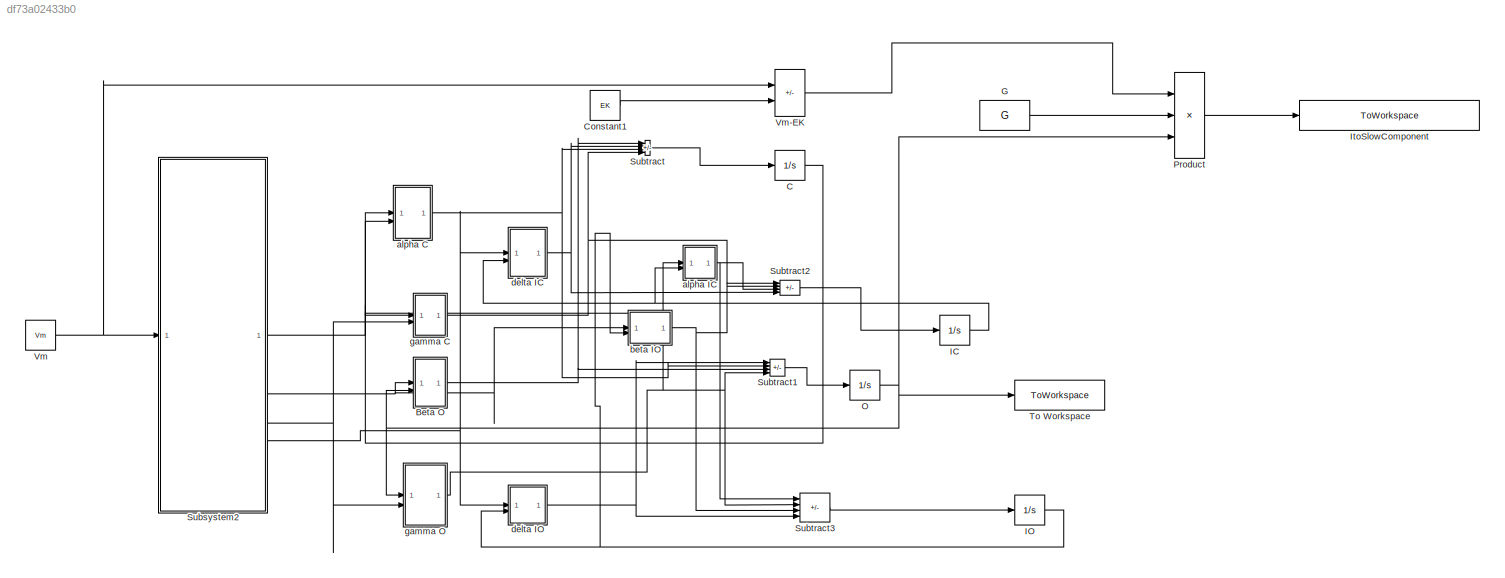
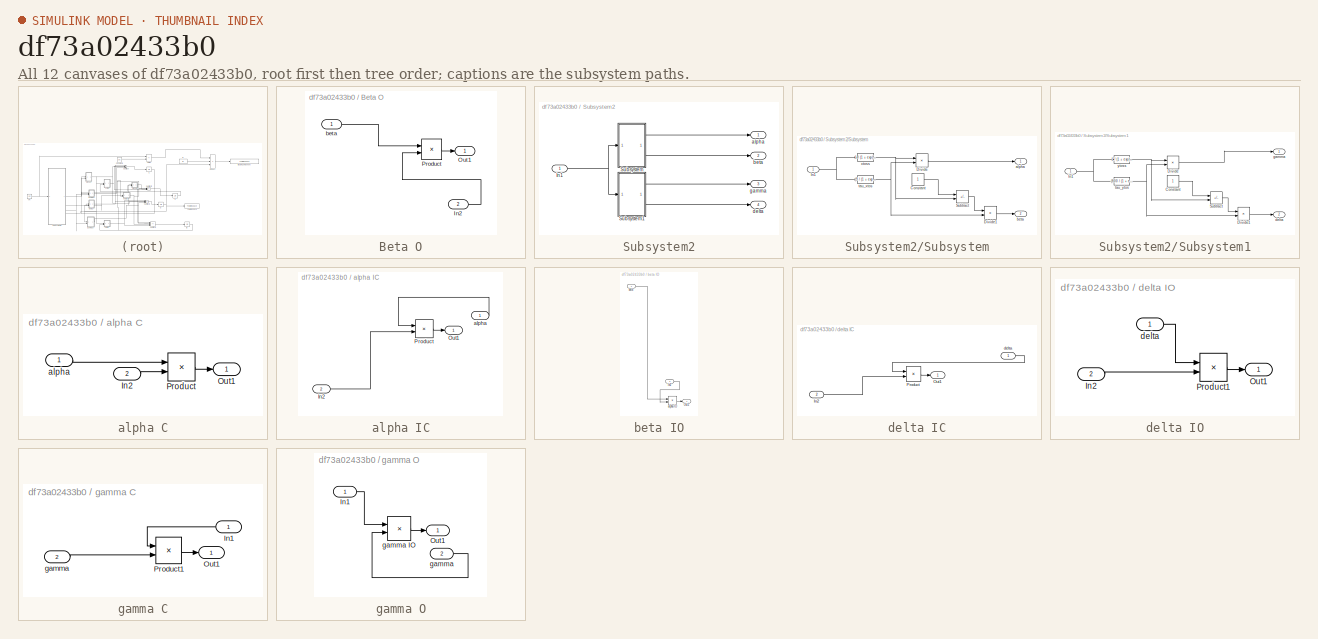
[diagram: thumbnail index - all 12 canvases of the model, root first then tree order]
MODEL slx_df73a02433b0
KIND model
CONFIG AbsTol = auto
CONFIG EnableMultiTasking = off
CONFIG FixedStep = auto
CONFIG MaxStep = auto
CONFIG MinStep = auto
CONFIG RelTol = 1e-3
CONFIG SampleTimeConstraint = Unconstrained
CONFIG SolverName = VariableStepAuto
CONFIG StartTime = 0.0
CONFIG StopTime = 2000
BLOCK [SubSystem] Beta O
BLOCK [Inport] Beta O/In2
  Port = 2
BLOCK [Outport] Beta O/Out1
BLOCK [Product] Beta O/Product
BLOCK [Inport] Beta O/beta
BLOCK [Integrator] C
  InitialCondition = 1
BLOCK [Constant] Constant1
  Value = EK
BLOCK [Constant] G
  NameLocation = top
  Value = G
BLOCK [Integrator] IC
BLOCK [Integrator] IO
BLOCK [ToWorkspace] ItoSlowComponent
  FixptAsFi = on
  MaxDataPoints = inf
  SampleTime = -1
  VariableName = Itomm
BLOCK [Integrator] O
BLOCK [Product] Product
  Inputs = 3
BLOCK [SubSystem] Subsystem2
BLOCK [Inport] Subsystem2/In1
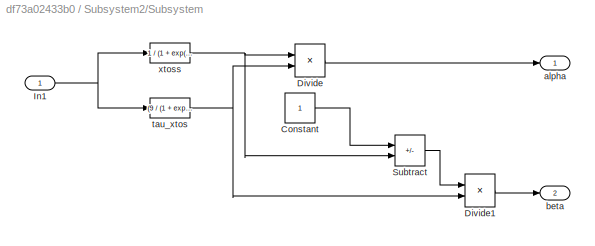
BLOCK [SubSystem] Subsystem2/Subsystem
BLOCK [Constant] Subsystem2/Subsystem/Constant
BLOCK [Product] Subsystem2/Subsystem/Divide
  Inputs = */
  RndMeth = Zero
  SaturateOnIntegerOverflow = on
BLOCK [Product] Subsystem2/Subsystem/Divide1
  Inputs = */
  RndMeth = Zero
  SaturateOnIntegerOverflow = on
BLOCK [Inport] Subsystem2/Subsystem/In1
BLOCK [Sum] Subsystem2/Subsystem/Subtract
  IconShape = rectangular
  Inputs = +-
BLOCK [Outport] Subsystem2/Subsystem/alpha
BLOCK [Outport] Subsystem2/Subsystem/beta
  Port = 2
BLOCK [Fcn] Subsystem2/Subsystem/tau_xtos
  Expr = (9 / (1 + exp((u + 3) / 15))) + 0.5
BLOCK [Fcn] Subsystem2/Subsystem/xtoss
  Expr = 1 / (1 + exp(-(u - 19.0) / 13))
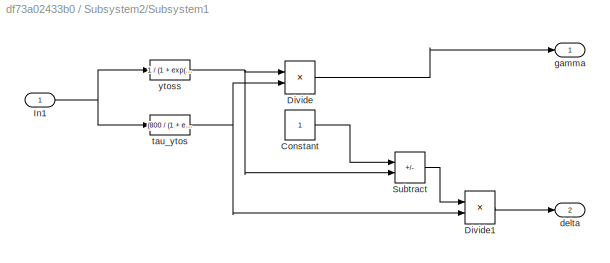
BLOCK [SubSystem] Subsystem2/Subsystem1
BLOCK [Constant] Subsystem2/Subsystem1/Constant
BLOCK [Product] Subsystem2/Subsystem1/Divide
  Inputs = */
  RndMeth = Zero
  SaturateOnIntegerOverflow = on
BLOCK [Product] Subsystem2/Subsystem1/Divide1
  Inputs = */
  RndMeth = Zero
  SaturateOnIntegerOverflow = on
BLOCK [Inport] Subsystem2/Subsystem1/In1
BLOCK [Sum] Subsystem2/Subsystem1/Subtract
  IconShape = rectangular
  Inputs = +-
BLOCK [Outport] Subsystem2/Subsystem1/delta
  Port = 2
BLOCK [Outport] Subsystem2/Subsystem1/gamma
BLOCK [Fcn] Subsystem2/Subsystem1/tau_ytos
  Expr = (800 / (1 + exp((u + 60) / 10))) + 30
BLOCK [Fcn] Subsystem2/Subsystem1/ytoss
  Expr = 1 / (1 + exp((u + 19.5) / 5))
BLOCK [Outport] Subsystem2/alpha
BLOCK [Outport] Subsystem2/beta
  Port = 2
BLOCK [Outport] Subsystem2/delta
  Port = 4
BLOCK [Outport] Subsystem2/gamma
  Port = 3
BLOCK [Sum] Subtract
  IconShape = rectangular
  Inputs = ++--
BLOCK [Sum] Subtract1
  IconShape = rectangular
  Inputs = ++--
BLOCK [Sum] Subtract2
  IconShape = rectangular
  Inputs = ++--
BLOCK [Sum] Subtract3
  IconShape = rectangular
  Inputs = ++--
BLOCK [ToWorkspace] To Workspace
  FixptAsFi = on
  MaxDataPoints = inf
  SampleTime = -1
  VariableName = O
BLOCK [Constant] Vm
  Value = Vm
BLOCK [Sum] Vm-EK
  IconShape = rectangular
  Inputs = +-
BLOCK [SubSystem] alpha C
BLOCK [Inport] alpha C/In2
  Port = 2
BLOCK [Outport] alpha C/Out1
BLOCK [Product] alpha C/Product
BLOCK [Inport] alpha C/alpha
BLOCK [SubSystem] alpha IC
BLOCK [Inport] alpha IC/In2
  Port = 2
BLOCK [Outport] alpha IC/Out1
BLOCK [Product] alpha IC/Product
BLOCK [Inport] alpha IC/alpha
BLOCK [SubSystem] beta IO
BLOCK [Inport] beta IO/In2
  Port = 2
BLOCK [Outport] beta IO/Out1
BLOCK [Product] beta IO/alpha IO
BLOCK [Inport] beta IO/beta
BLOCK [SubSystem] delta IC
BLOCK [Inport] delta IC/In2
  Port = 2
BLOCK [Outport] delta IC/Out1
BLOCK [Product] delta IC/Product
BLOCK [Inport] delta IC/delta
BLOCK [SubSystem] delta IO
BLOCK [Inport] delta IO/In2
  Port = 2
BLOCK [Outport] delta IO/Out1
BLOCK [Product] delta IO/Product1
BLOCK [Inport] delta IO/delta
BLOCK [SubSystem] gamma C
BLOCK [Inport] gamma C/In1
BLOCK [Outport] gamma C/Out1
BLOCK [Product] gamma C/Product1
BLOCK [Inport] gamma C/gamma
  Port = 2
BLOCK [SubSystem] gamma O
BLOCK [Inport] gamma O/In1
BLOCK [Outport] gamma O/Out1
BLOCK [Inport] gamma O/gamma
  Port = 2
BLOCK [Product] gamma O/gamma IO
LINE Beta O/In2:1 -> Beta O/Product:2
LINE Beta O/Product:1 -> Beta O/Out1:1
LINE Beta O/beta:1 -> Beta O/Product:1
NET Beta O:1 -> Subtract1:3, Subtract:1
NET C:1 -> alpha C:2, gamma C:1
LINE Constant1:1 -> Vm-EK:2
LINE G:1 -> Product:2
NET IC:1 -> alpha IC:2, delta IC:2
NET IO:1 -> beta IO:2, delta IO:2
NET O:1 -> Beta O:2, Product:3, To Workspace:1, gamma O:1
LINE Product:1 -> ItoSlowComponent:1
NET Subsystem2/In1:1 -> Subsystem2/Subsystem1:1, Subsystem2/Subsystem:1
LINE Subsystem2/Subsystem/Constant:1 -> Subsystem2/Subsystem/Subtract:1
LINE Subsystem2/Subsystem/Divide1:1 -> Subsystem2/Subsystem/beta:1
LINE Subsystem2/Subsystem/Divide:1 -> Subsystem2/Subsystem/alpha:1
NET Subsystem2/Subsystem/In1:1 -> Subsystem2/Subsystem/tau_xtos:1, Subsystem2/Subsystem/xtoss:1
LINE Subsystem2/Subsystem/Subtract:1 -> Subsystem2/Subsystem/Divide1:1
NET Subsystem2/Subsystem/tau_xtos:1 -> Subsystem2/Subsystem/Divide1:2, Subsystem2/Subsystem/Divide:2
NET Subsystem2/Subsystem/xtoss:1 -> Subsystem2/Subsystem/Divide:1, Subsystem2/Subsystem/Subtract:2
LINE Subsystem2/Subsystem1/Constant:1 -> Subsystem2/Subsystem1/Subtract:1
LINE Subsystem2/Subsystem1/Divide1:1 -> Subsystem2/Subsystem1/delta:1
LINE Subsystem2/Subsystem1/Divide:1 -> Subsystem2/Subsystem1/gamma:1
NET Subsystem2/Subsystem1/In1:1 -> Subsystem2/Subsystem1/tau_ytos:1, Subsystem2/Subsystem1/ytoss:1
LINE Subsystem2/Subsystem1/Subtract:1 -> Subsystem2/Subsystem1/Divide1:1
NET Subsystem2/Subsystem1/tau_ytos:1 -> Subsystem2/Subsystem1/Divide1:2, Subsystem2/Subsystem1/Divide:2
NET Subsystem2/Subsystem1/ytoss:1 -> Subsystem2/Subsystem1/Divide:1, Subsystem2/Subsystem1/Subtract:2
LINE Subsystem2/Subsystem1:1 -> Subsystem2/gamma:1
LINE Subsystem2/Subsystem1:2 -> Subsystem2/delta:1
LINE Subsystem2/Subsystem:1 -> Subsystem2/alpha:1
LINE Subsystem2/Subsystem:2 -> Subsystem2/beta:1
NET Subsystem2:1 -> alpha C:1, alpha IC:1
NET Subsystem2:2 -> Beta O:1, beta IO:1
NET Subsystem2:3 -> gamma C:2, gamma O:2
NET Subsystem2:4 -> delta IC:1, delta IO:1
LINE Subtract1:1 -> O:1
LINE Subtract2:1 -> IC:1
LINE Subtract3:1 -> IO:1
LINE Subtract:1 -> C:1
LINE Vm-EK:1 -> Product:1
NET Vm:1 -> Subsystem2:1, Vm-EK:1
LINE alpha C/In2:1 -> alpha C/Product:2
LINE alpha C/Product:1 -> alpha C/Out1:1
LINE alpha C/alpha:1 -> alpha C/Product:1
NET alpha C:1 -> Subtract1:2, Subtract:3
LINE alpha IC/In2:1 -> alpha IC/Product:2
LINE alpha IC/Product:1 -> alpha IC/Out1:1
LINE alpha IC/alpha:1 -> alpha IC/Product:1
NET alpha IC:1 -> Subtract2:3, Subtract3:1
LINE beta IO/In2:1 -> beta IO/alpha IO:2
LINE beta IO/alpha IO:1 -> beta IO/Out1:1
LINE beta IO/beta:1 -> beta IO/alpha IO:1
NET beta IO:1 -> Subtract2:2, Subtract3:3
LINE delta IC/In2:1 -> delta IC/Product:2
LINE delta IC/Product:1 -> delta IC/Out1:1
LINE delta IC/delta:1 -> delta IC/Product:1
NET delta IC:1 -> Subtract2:4, Subtract:2
LINE delta IO/In2:1 -> delta IO/Product1:2
LINE delta IO/Product1:1 -> delta IO/Out1:1
LINE delta IO/delta:1 -> delta IO/Product1:1
NET delta IO:1 -> Subtract1:1, Subtract3:4
LINE gamma C/In1:1 -> gamma C/Product1:1
LINE gamma C/Product1:1 -> gamma C/Out1:1
LINE gamma C/gamma:1 -> gamma C/Product1:2
NET gamma C:1 -> Subtract2:1, Subtract:4
LINE gamma O/In1:1 -> gamma O/gamma IO:1
LINE gamma O/gamma IO:1 -> gamma O/Out1:1
LINE gamma O/gamma:1 -> gamma O/gamma IO:2
NET gamma O:1 -> Subtract1:4, Subtract3:2
note: NET lines group one-source signal fan-out (src -> all destinations, sorted); 1:1 wires keep LINE
